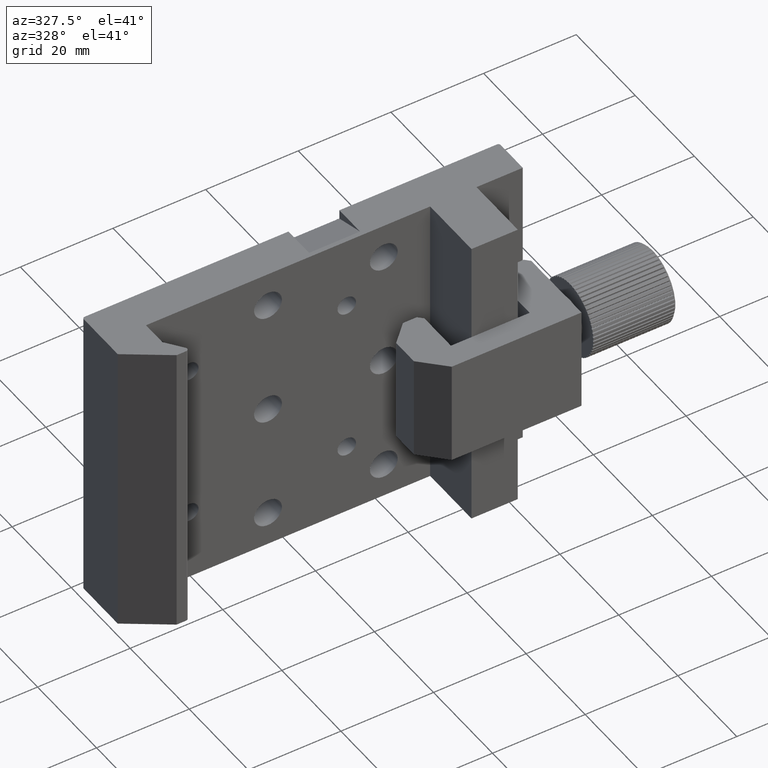
[diagram: clean part render]
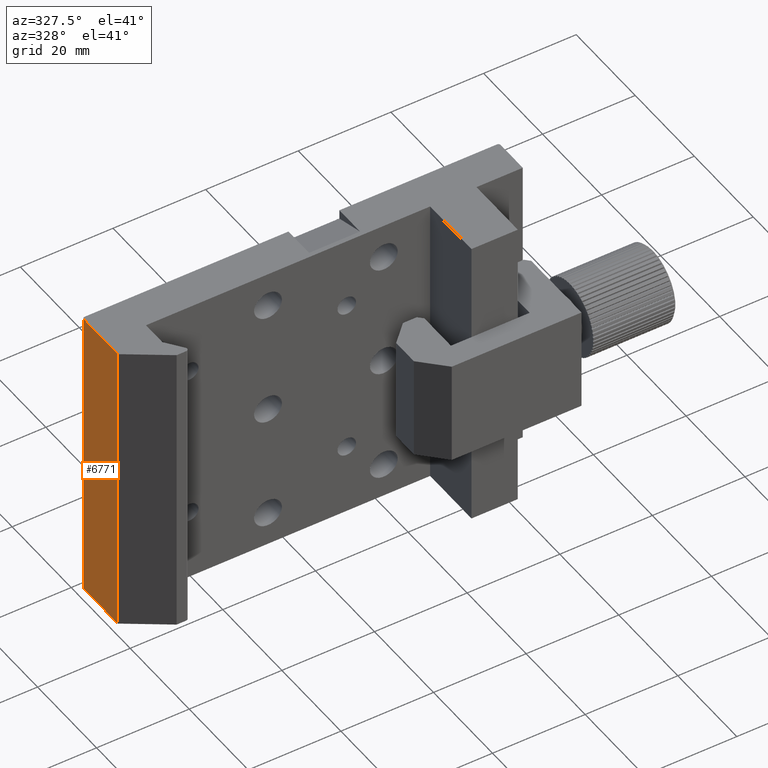
[diagram: same view with one face highlighted and labeled with its STEP entity id]
A machine part, auxiliary view. The second image highlights one B-rep face of the part: STEP entity #6771.
In plain terms, the highlighted planar face has unit normal (1, 0, 0).
Its self-contained STEP definition (entity closure, byte-faithful):
#1168 = CARTESIAN_POINT ( 'NONE',  ( -79.46968165733007100, 5.059530426956775400, 32.50000000000000000 ) ) ;
#1176 = CARTESIAN_POINT ( 'NONE',  ( -79.46968165733007100, 5.059530426956775400, 32.50000000000000000 ) ) ;
#1177 = DIRECTION ( 'NONE',  ( -0.0000000000000000000, -0.0000000000000000000, -1.000000000000000000 ) ) ;
#1178 = CARTESIAN_POINT ( 'NONE',  ( -79.46968165733007100, 5.059530426956775400, -32.50000000000000000 ) ) ;
#1179 = DIRECTION ( 'NONE',  ( -0.0000000000000000000, -1.000000000000000000, -0.0000000000000000000 ) ) ;
#1180 = DIRECTION ( 'NONE',  ( -0.0000000000000000000, -1.000000000000000000, -0.0000000000000000000 ) ) ;
#1181 = CARTESIAN_POINT ( 'NONE',  ( -79.46968165733007100, 16.55953042695677300, 32.50000000000000000 ) ) ;
#1182 = DIRECTION ( 'NONE',  ( -0.0000000000000000000, -0.0000000000000000000, -1.000000000000000000 ) ) ;
#2507 = EDGE_CURVE ( 'NONE', #5930, #5935, #4597, .T. ) ;
#2508 = EDGE_CURVE ( 'NONE', #5939, #5935, #4599, .T. ) ;
#2509 = EDGE_CURVE ( 'NONE', #5928, #5930, #4595, .T. ) ;
#2510 = EDGE_CURVE ( 'NONE', #5928, #5939, #4603, .T. ) ;
#4152 = FACE_OUTER_BOUND ( 'NONE', #5417, .T. ) ;
#4595 = LINE ( 'NONE', #1168, #4604 ) ;
#4597 = LINE ( 'NONE', #1176, #4600 ) ;
#4599 = LINE ( 'NONE', #1178, #4602 ) ;
#4600 = VECTOR ( 'NONE', #1177, 1000.000000000000000 ) ;
#4602 = VECTOR ( 'NONE', #1179, 1000.000000000000000 ) ;
#4603 = LINE ( 'NONE', #1181, #4606 ) ;
#4604 = VECTOR ( 'NONE', #1180, 1000.000000000000000 ) ;
#4606 = VECTOR ( 'NONE', #1182, 1000.000000000000000 ) ;
#4903 = CARTESIAN_POINT ( 'NONE',  ( -79.46968165733007100, 5.059530426956775400, 32.50000000000000000 ) ) ;
#4908 = CARTESIAN_POINT ( 'NONE',  ( -79.46968165733007100, 5.059530426956775400, -32.50000000000000000 ) ) ;
#4912 = CARTESIAN_POINT ( 'NONE',  ( -79.46968165733007100, 16.55953042695677300, -32.50000000000000000 ) ) ;
#5141 = CARTESIAN_POINT ( 'NONE',  ( -79.46968165733007100, 5.059530426956775400, 32.50000000000000000 ) ) ;
#5148 = PLANE ( 'NONE',  #5194 ) ;
#5150 = DIRECTION ( 'NONE',  ( 1.000000000000000000, 0.0000000000000000000, 0.0000000000000000000 ) ) ;
#5151 = DIRECTION ( 'NONE',  ( 0.0000000000000000000, 0.0000000000000000000, -1.000000000000000000 ) ) ;
#5194 = AXIS2_PLACEMENT_3D ( 'NONE', #5141, #5150, #5151 ) ;
#5417 = EDGE_LOOP ( 'NONE', ( #6659, #6658, #6657, #5743 ) ) ;
#5743 = ORIENTED_EDGE ( 'NONE', *, *, #2510, .T. ) ;
#5928 = VERTEX_POINT ( 'NONE', #6645 ) ;
#5930 = VERTEX_POINT ( 'NONE', #4903 ) ;
#5935 = VERTEX_POINT ( 'NONE', #4908 ) ;
#5939 = VERTEX_POINT ( 'NONE', #4912 ) ;
#6645 = CARTESIAN_POINT ( 'NONE',  ( -79.46968165733007100, 16.55953042695677300, 32.50000000000000000 ) ) ;
#6657 = ORIENTED_EDGE ( 'NONE', *, *, #2509, .F. ) ;
#6658 = ORIENTED_EDGE ( 'NONE', *, *, #2507, .F. ) ;
#6659 = ORIENTED_EDGE ( 'NONE', *, *, #2508, .T. ) ;
#6771 = ADVANCED_FACE ( 'NONE', ( #4152 ), #5148, .F. ) ;